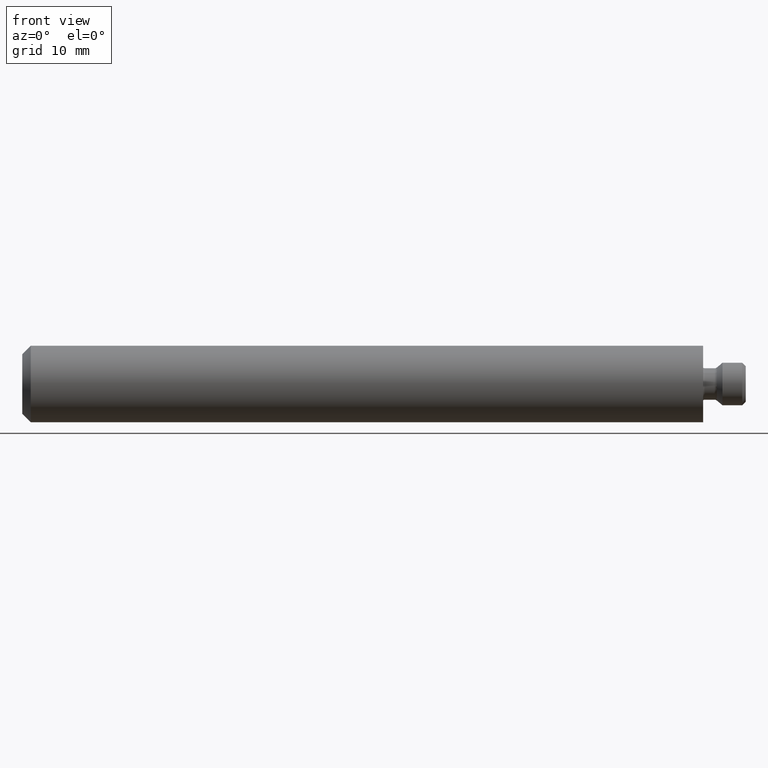
[diagram: clean part render]
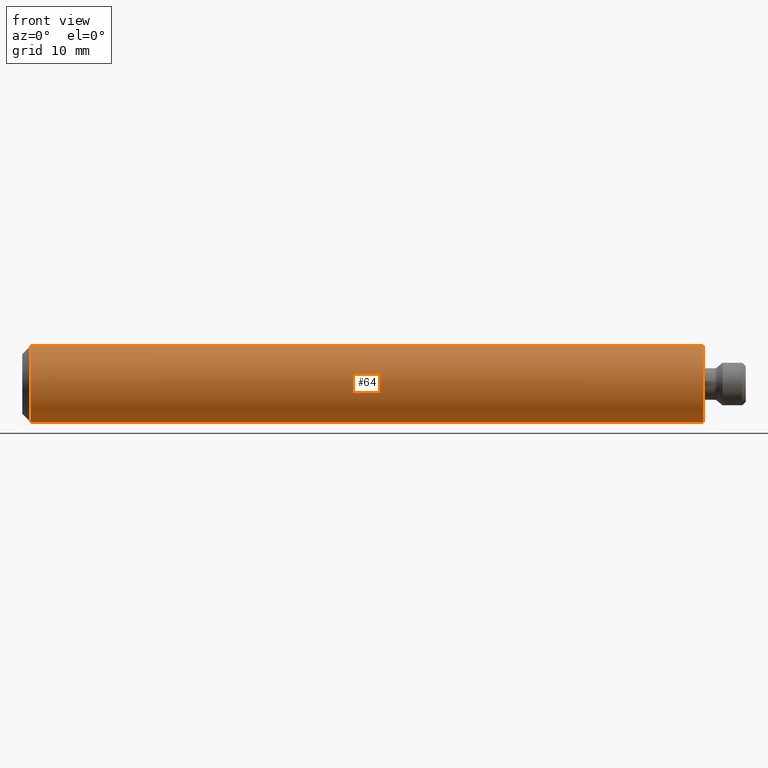
[diagram: same view with one face highlighted and labeled with its STEP entity id]
A machine part, front view. The second image highlights one B-rep face of the part: STEP entity #64.
In plain terms, the highlighted cylindrical surface (bore or boss wall) has radius 4.5 mm, axis along (1, 0, 0).
Its self-contained STEP definition (entity closure, byte-faithful):
#8 = ORIENTED_EDGE ( 'NONE', *, *, #82, .F. ) ;
#11 = FACE_OUTER_BOUND ( 'NONE', #314, .T. ) ;
#19 = DIRECTION ( 'NONE',  ( 1.000000000000000000, -0.0000000000000000000, -0.0000000000000000000 ) ) ;
#22 = CARTESIAN_POINT ( 'NONE',  ( 0.0000000000000000000, 0.0000000000000000000, 0.0000000000000000000 ) ) ;
#41 = DIRECTION ( 'NONE',  ( 1.000000000000000000, -0.0000000000000000000, -0.0000000000000000000 ) ) ;
#49 = CIRCLE ( 'NONE', #403, 4.499999999999988500 ) ;
#50 = FACE_OUTER_BOUND ( 'NONE', #439, .T. ) ;
#62 = DIRECTION ( 'NONE',  ( 0.0000000000000000000, 0.0000000000000000000, -1.000000000000000000 ) ) ;
#64 = ADVANCED_FACE ( 'NONE', ( #11, #50 ), #332, .T. ) ;
#82 = EDGE_CURVE ( 'NONE', #472, #472, #452, .T. ) ;
#89 = CARTESIAN_POINT ( 'NONE',  ( 0.0000000000000000000, 0.0000000000000000000, -4.499999999999988500 ) ) ;
#106 = CARTESIAN_POINT ( 'NONE',  ( -79.00000000000000000, 0.0000000000000000000, -4.499999999999988500 ) ) ;
#108 = DIRECTION ( 'NONE',  ( 0.0000000000000000000, 0.0000000000000000000, -1.000000000000000000 ) ) ;
#151 = AXIS2_PLACEMENT_3D ( 'NONE', #22, #19, #62 ) ;
#197 = ORIENTED_EDGE ( 'NONE', *, *, #478, .T. ) ;
#200 = CARTESIAN_POINT ( 'NONE',  ( 11.08730158730159100, 0.0000000000000000000, 0.0000000000000000000 ) ) ;
#272 = DIRECTION ( 'NONE',  ( 1.000000000000000000, -0.0000000000000000000, -0.0000000000000000000 ) ) ;
#285 = DIRECTION ( 'NONE',  ( 0.0000000000000000000, 0.0000000000000000000, -1.000000000000000000 ) ) ;
#314 = EDGE_LOOP ( 'NONE', ( #197 ) ) ;
#332 = CYLINDRICAL_SURFACE ( 'NONE', #531, 4.499999999999988500 ) ;
#357 = VERTEX_POINT ( 'NONE', #106 ) ;
#403 = AXIS2_PLACEMENT_3D ( 'NONE', #545, #272, #108 ) ;
#439 = EDGE_LOOP ( 'NONE', ( #8 ) ) ;
#452 = CIRCLE ( 'NONE', #151, 4.499999999999988500 ) ;
#472 = VERTEX_POINT ( 'NONE', #89 ) ;
#478 = EDGE_CURVE ( 'NONE', #357, #357, #49, .T. ) ;
#531 = AXIS2_PLACEMENT_3D ( 'NONE', #200, #41, #285 ) ;
#545 = CARTESIAN_POINT ( 'NONE',  ( -79.00000000000000000, 0.0000000000000000000, 0.0000000000000000000 ) ) ;